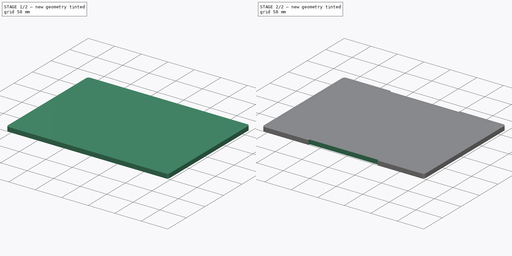
[diagram: build sequence overview — one tinted view per stage of 2, left to right]
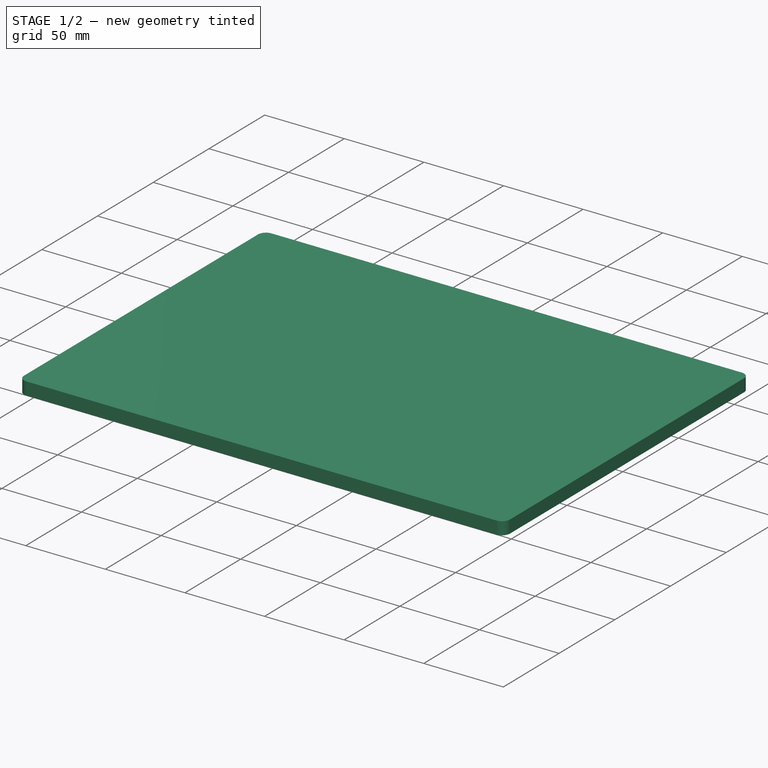
[diagram: stage 1 of 2 — iso view after this stage's code; geometry added in this stage tinted green]
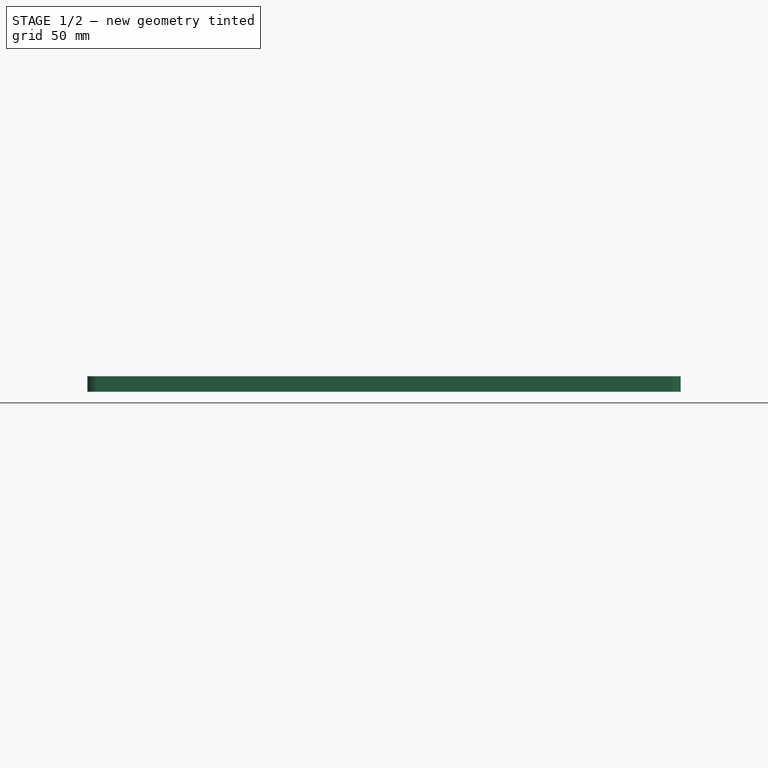
[diagram: stage 1 of 2 — front view after this stage's code; geometry added in this stage tinted green]
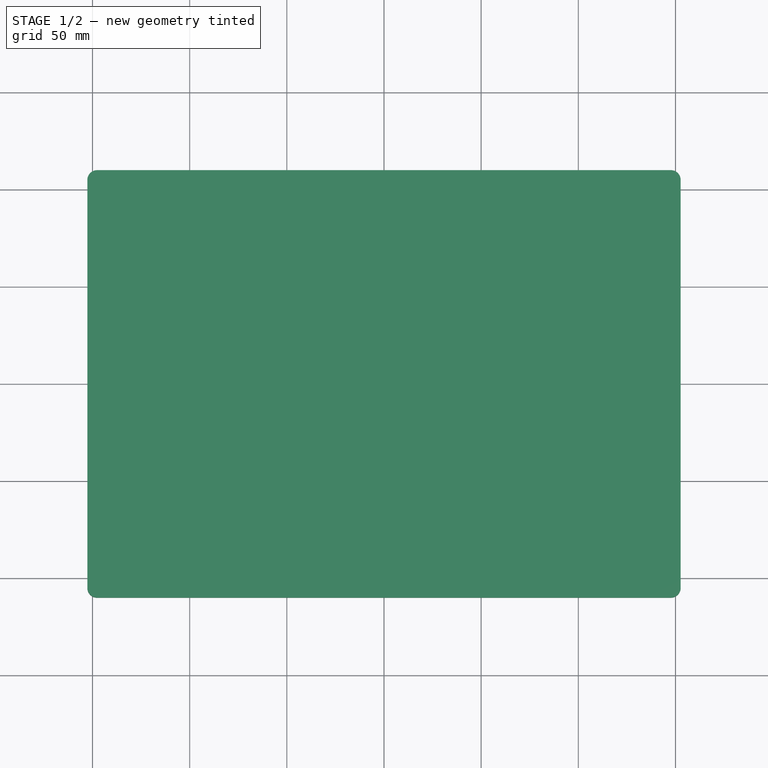
[diagram: stage 1 of 2 — top view after this stage's code; geometry added in this stage tinted green]
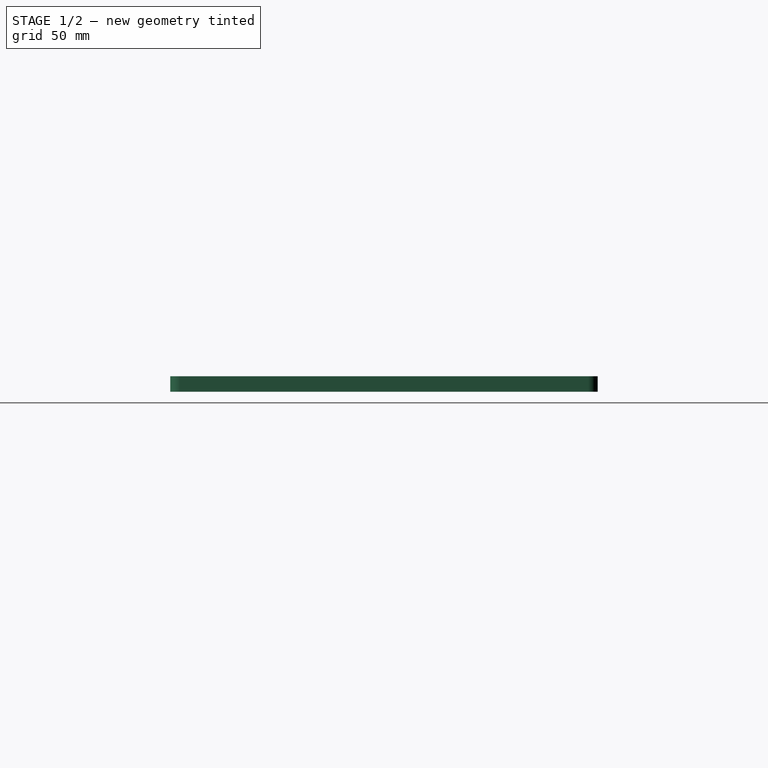
[diagram: stage 1 of 2 — right view after this stage's code; geometry added in this stage tinted green]
FCSTD DOCUMENT  (FreeCAD 0.14R3310 (Git))
Label: 20. Cristal
License: CC-BY 3.0
LicenseURL: http://creativecommons.org/licenses/by/3.0/
objects: Sketcher::SketchObject×3, PartDesign::Pocket×2, PartDesign::Pad×1, PartDesign::Fillet×1
note: 10 computed .brp shape members not serialized (recipe doc carries the construction recipe); baked Part::Feature solids carry a one-line shape summary decoded from their .brp

FEATURE [Sketcher::SketchObject] Sketch
  sketch-geometry (4):
    g0: LineSegment StartX=-152.65 StartY=110 StartZ=0 EndX=152.65 EndY=110 EndZ=0
    g1: LineSegment StartX=152.65 StartY=110 StartZ=0 EndX=152.65 EndY=-110 EndZ=0
    g2: LineSegment StartX=152.65 StartY=-110 StartZ=0 EndX=-152.65 EndY=-110 EndZ=0
    g3: LineSegment StartX=-152.65 StartY=-110 StartZ=0 EndX=-152.65 EndY=110 EndZ=0
  constraints (11):
    c: Coincident(g0,g1)
    c: Coincident(g1,g2)
    c: Coincident(g2,g3)
    c: Coincident(g3,g0)
    c: Horizontal(g0)
    c: Horizontal(g2)
    c: Vertical(g1)
    c: Vertical(g3)
    c: Symmetric(g1,g0,g-1)
    c: Distance(g0) = 305.3
    c: Distance(g3) = 220
FEATURE [PartDesign::Pad] Pad
  Length = 8
  Length2 = 100
  Sketch = -> Sketch
  Type = 0
FEATURE [PartDesign::Fillet] Fillet
  Base = -> Pad [Edge1,Edge8,Edge5,Edge2]
  Radius = 5
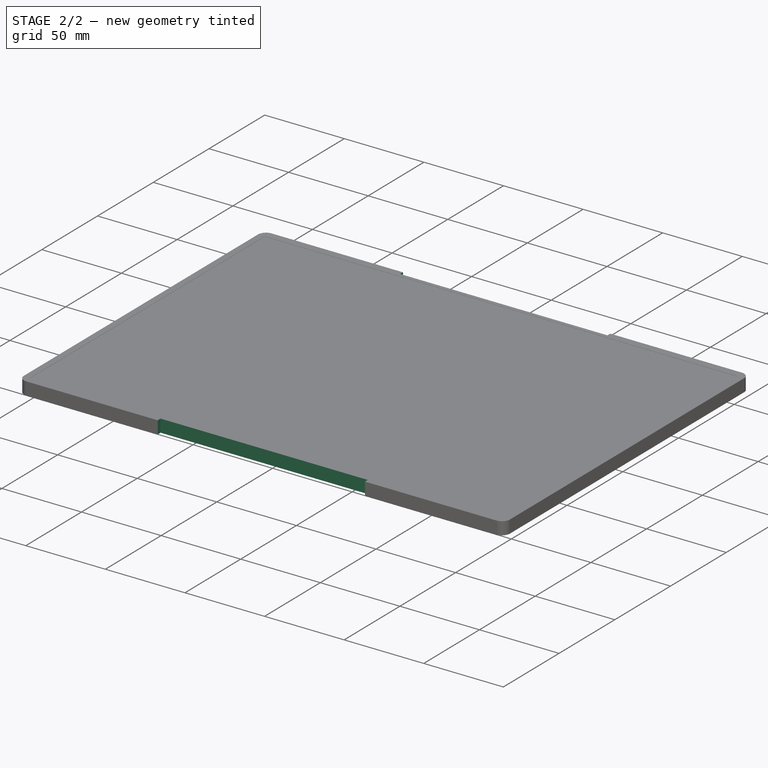
[diagram: stage 2 of 2 — iso view after this stage's code; geometry added in this stage tinted green]
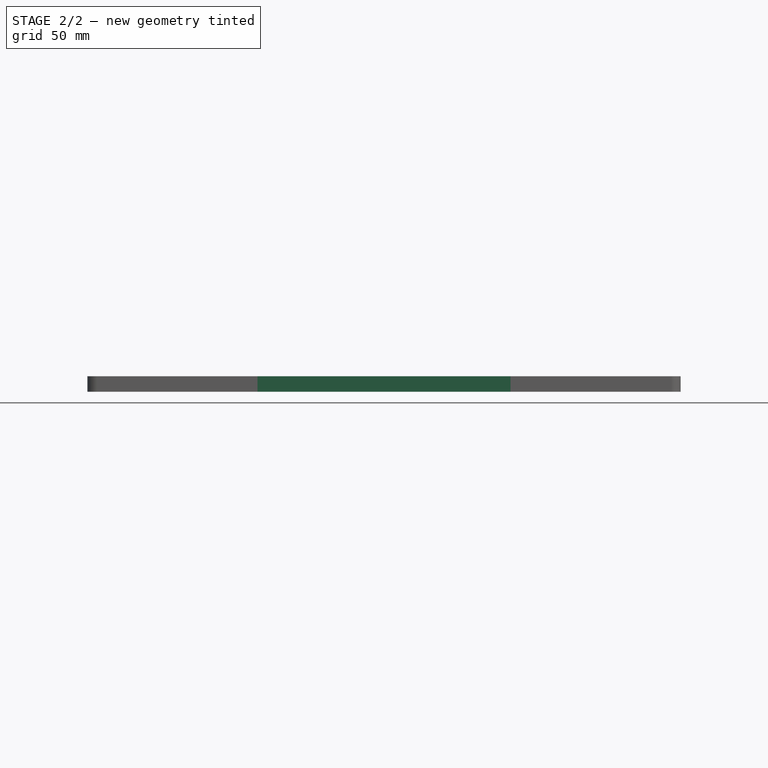
[diagram: stage 2 of 2 — front view after this stage's code; geometry added in this stage tinted green]
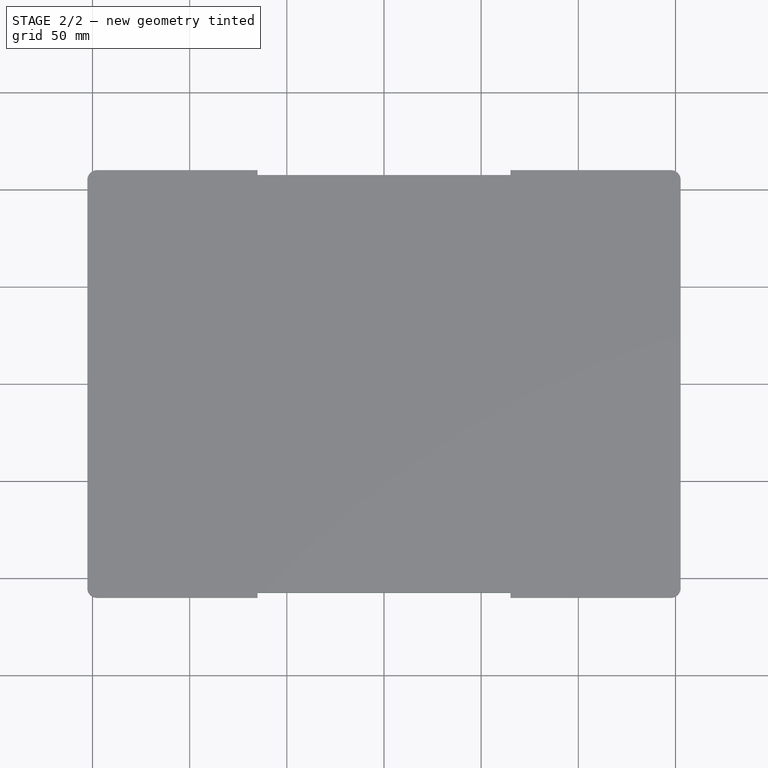
[diagram: stage 2 of 2 — top view after this stage's code; geometry added in this stage tinted green]
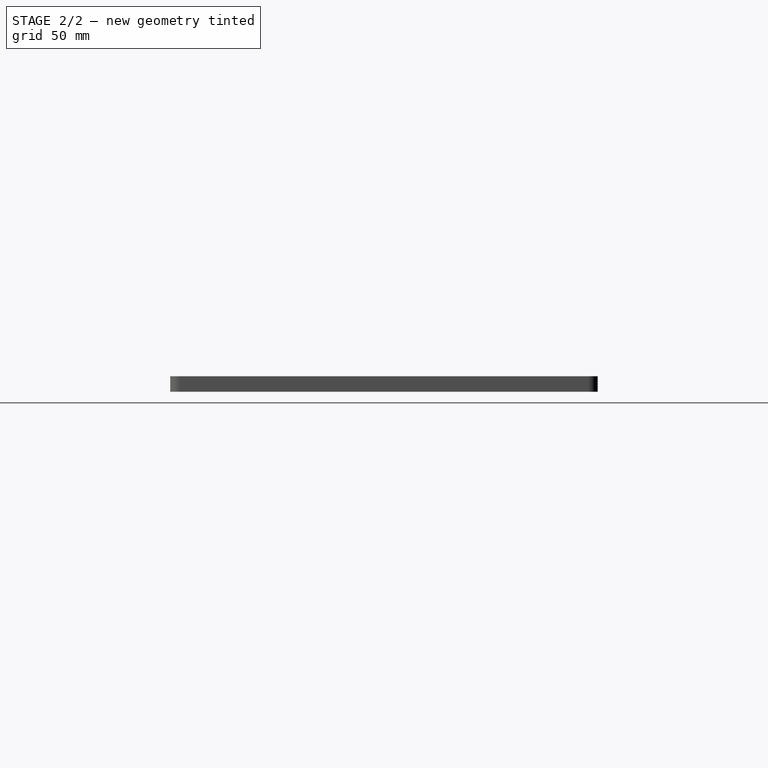
[diagram: stage 2 of 2 — right view after this stage's code; geometry added in this stage tinted green]
FEATURE [Sketcher::SketchObject] Sketch001
  ExternalGeometry = -> [Fillet]
  Placement = pos=(0,0,8) rot=(0,0,1;0rad)
  Support = -> Fillet [Face5]
  sketch-geometry (8):
    g0: LineSegment StartX=-65.1 StartY=110 StartZ=0 EndX=65.1 EndY=110 EndZ=0
    g1: LineSegment StartX=65.1 StartY=110 StartZ=0 EndX=65.1 EndY=107.5 EndZ=0
    g2: LineSegment StartX=65.1 StartY=107.5 StartZ=0 EndX=-65.1 EndY=107.5 EndZ=0
    g3: LineSegment StartX=-65.1 StartY=107.5 StartZ=0 EndX=-65.1 EndY=110 EndZ=0
    g4: LineSegment StartX=-65.1 StartY=-107.5 StartZ=0 EndX=65.1 EndY=-107.5 EndZ=0
    g5: LineSegment StartX=65.1 StartY=-107.5 StartZ=0 EndX=65.1 EndY=-110 EndZ=0
    g6: LineSegment StartX=65.1 StartY=-110 StartZ=0 EndX=-65.1 EndY=-110 EndZ=0
    g7: LineSegment StartX=-65.1 StartY=-110 StartZ=0 EndX=-65.1 EndY=-107.5 EndZ=0
  constraints (22):
    c: Coincident(g0,g1)
    c: Coincident(g1,g2)
    c: Coincident(g2,g3)
    c: Coincident(g3,g0)
    c: Horizontal(g0)
    c: Horizontal(g2)
    c: Vertical(g1)
    c: Vertical(g3)
    c: PointOnObject(g0,g-3)
    c: Distance(g2,g0) = 2.5
    c: Symmetric(g0,g0,g-2)
    c: Distance(g2) = 130.2
    c: Coincident(g4,g5)
    c: Coincident(g5,g6)
    c: Coincident(g6,g7)
    c: Coincident(g7,g4)
    c: Horizontal(g4)
    c: Horizontal(g6)
    c: Vertical(g5)
    c: Vertical(g7)
    c: Symmetric(g4,g1,g-1)
    c: Symmetric(g6,g0,g-1)
FEATURE [PartDesign::Pocket] Pocket
  Length = 8
  Sketch = -> Sketch001
  Type = 0
FEATURE [Sketcher::SketchObject] Sketch002
  Placement = pos=(0,0,8) rot=(0,0,1;0rad)
  Support = -> Pocket [Face4]
  sketch-geometry (4):
    g0: LineSegment StartX=-148.5 StartY=105 StartZ=0 EndX=148.5 EndY=105 EndZ=0
    g1: LineSegment StartX=148.5 StartY=105 StartZ=0 EndX=148.5 EndY=-105 EndZ=0
    g2: LineSegment StartX=148.5 StartY=-105 StartZ=0 EndX=-148.5 EndY=-105 EndZ=0
    g3: LineSegment StartX=-148.5 StartY=-105 StartZ=0 EndX=-148.5 EndY=105 EndZ=0
  constraints (11):
    c: Coincident(g0,g1)
    c: Coincident(g1,g2)
    c: Coincident(g2,g3)
    c: Coincident(g3,g0)
    c: Horizontal(g0)
    c: Horizontal(g2)
    c: Vertical(g1)
    c: Vertical(g3)
    c: Symmetric(g1,g0,g-1)
    c: Distance(g0) = 297
    c: Distance(g3) = 210
FEATURE [PartDesign::Pocket] Pocket001
  Length = 0.1
  Sketch = -> Sketch002
  Type = 0
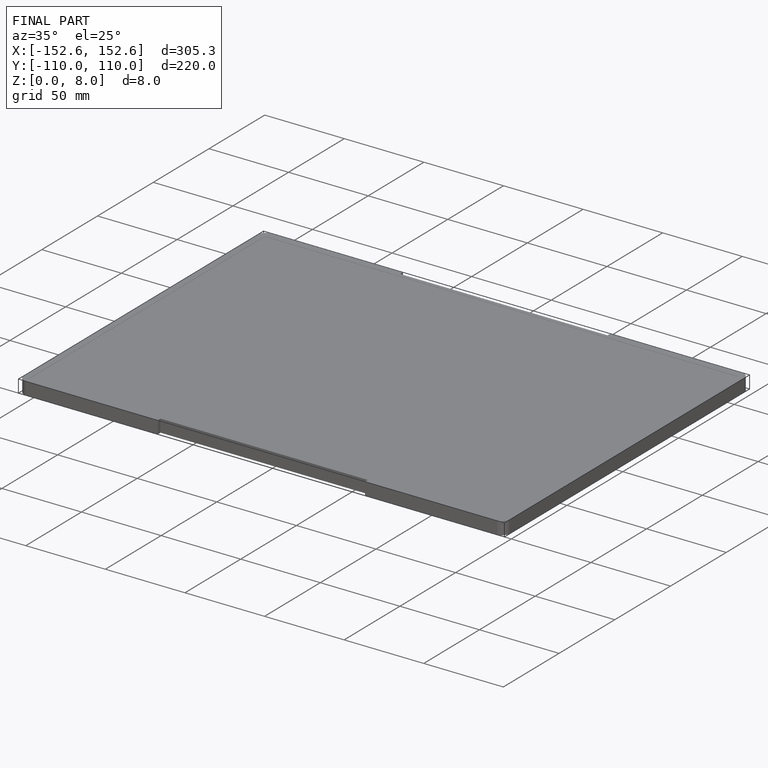
[diagram: finished part — iso view with bounding-box wireframe]
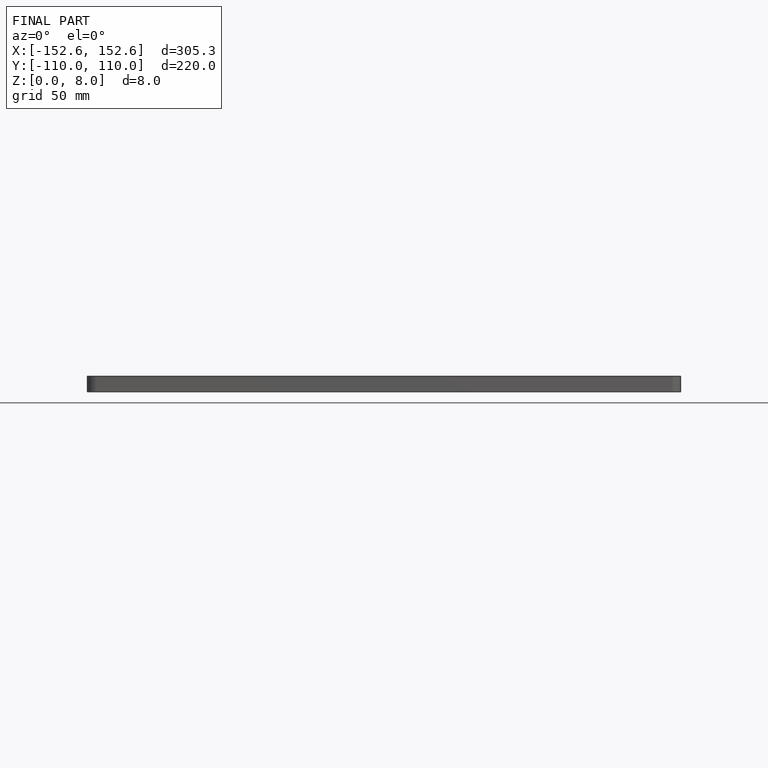
[diagram: finished part — front view with bounding-box wireframe]
